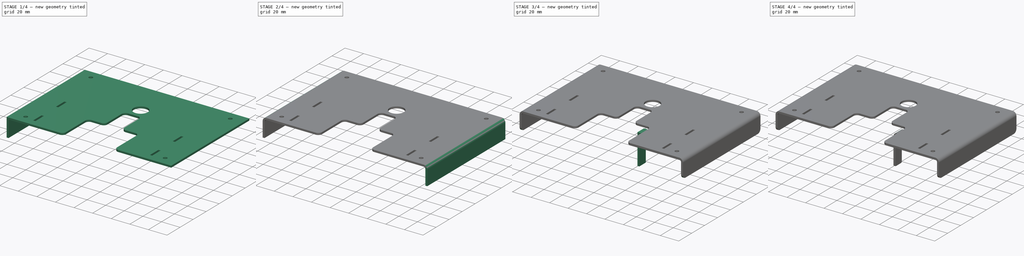
[diagram: build sequence overview — one tinted view per stage of 4, left to right]
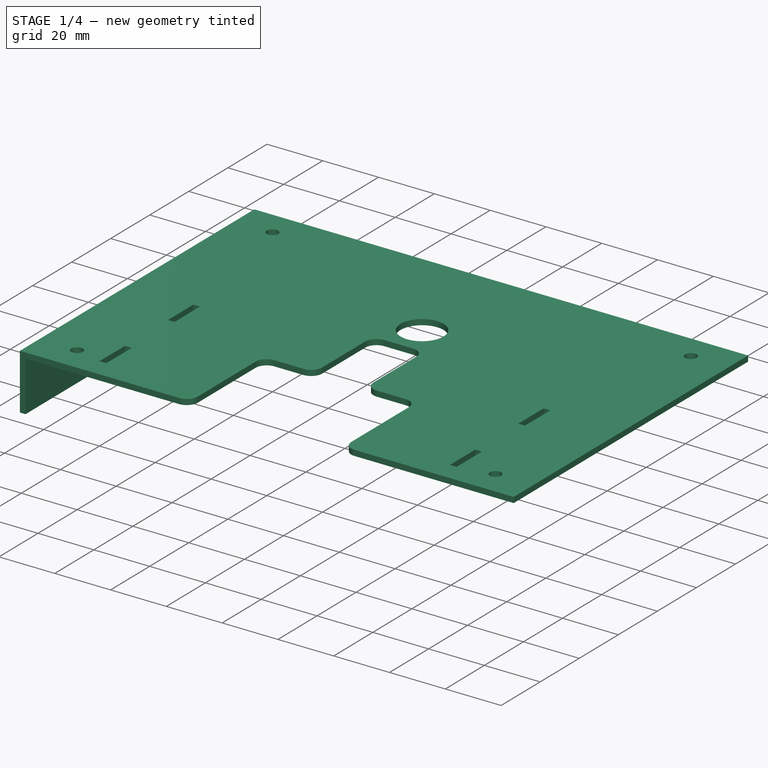
[diagram: stage 1 of 4 — iso view after this stage's code; geometry added in this stage tinted green]
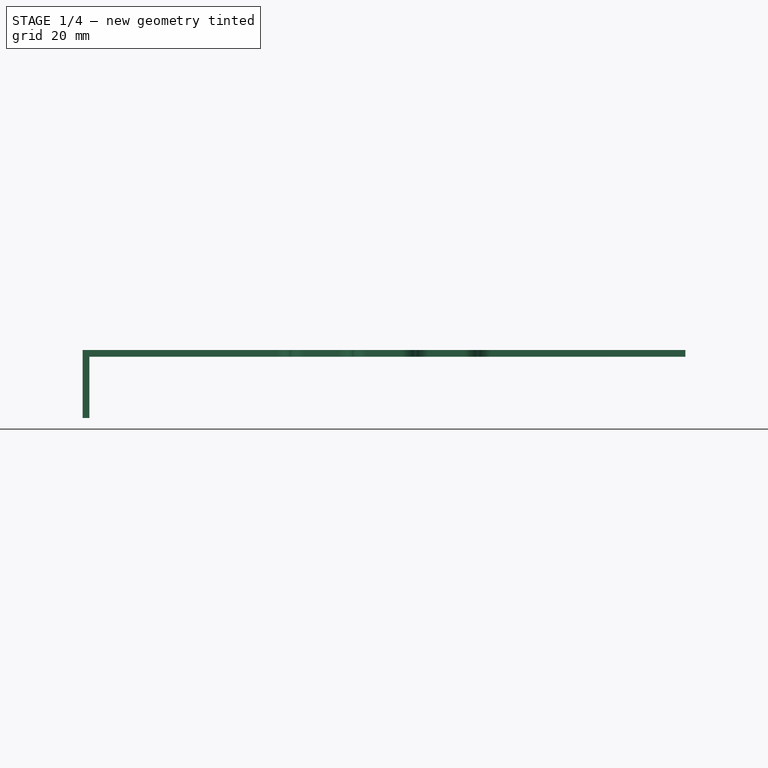
[diagram: stage 1 of 4 — front view after this stage's code; geometry added in this stage tinted green]
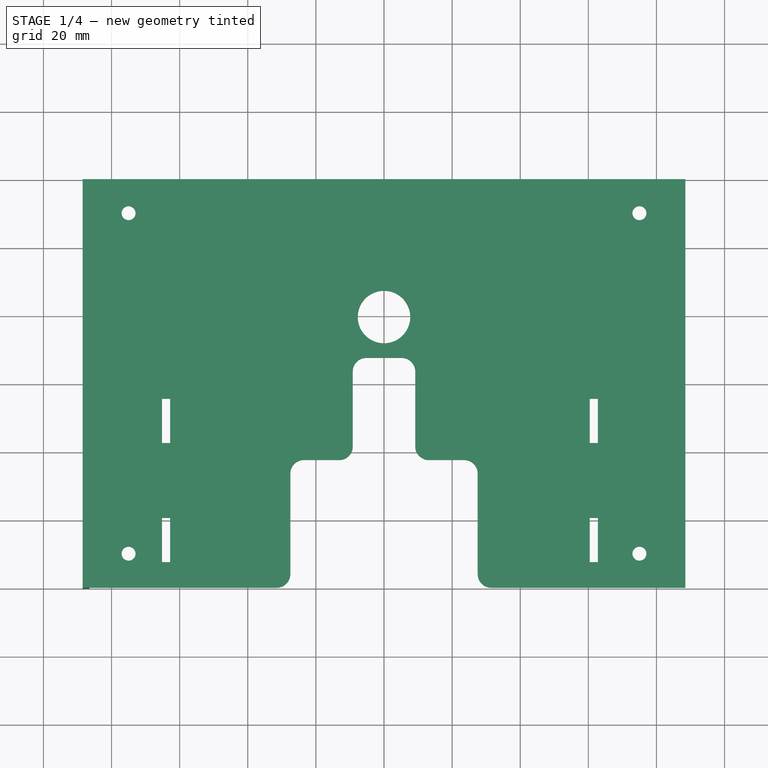
[diagram: stage 1 of 4 — top view after this stage's code; geometry added in this stage tinted green]
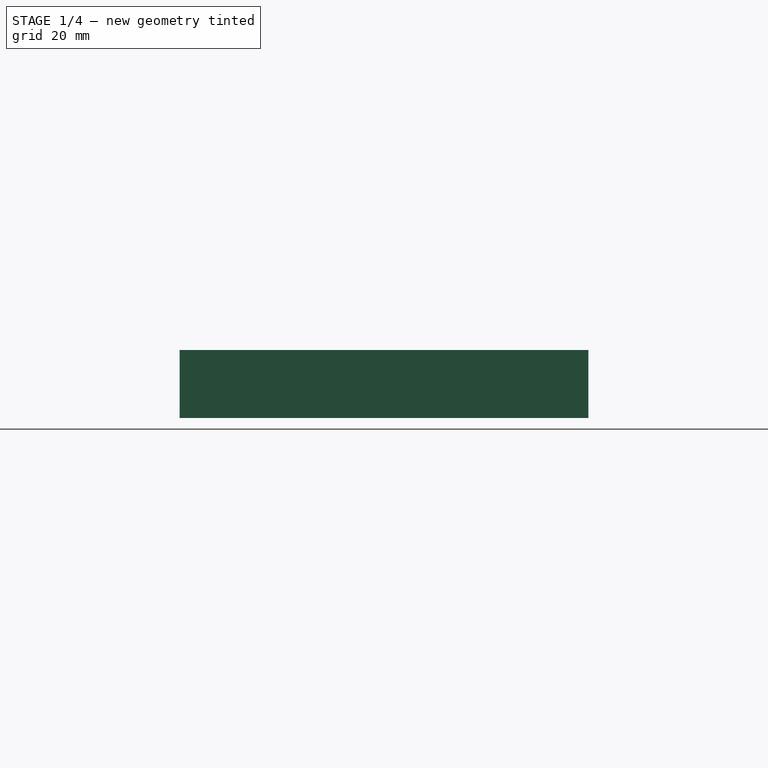
[diagram: stage 1 of 4 — right view after this stage's code; geometry added in this stage tinted green]
FCSTD DOCUMENT  (FreeCAD 0.14R3310 (Git))
Label: 47. PLACA Z (SOPORTE EN EJE Z)
License: CC-BY 3.0
LicenseURL: http://creativecommons.org/licenses/by/3.0/
objects: PartDesign::Fillet×7, Sketcher::SketchObject×5, PartDesign::Pad×5
note: 22 computed .brp shape members not serialized (recipe doc carries the construction recipe); baked Part::Feature solids carry a one-line shape summary decoded from their .brp

FEATURE [Sketcher::SketchObject] Sketch
  sketch-geometry (34):
    g0: LineSegment StartX=-88.5 StartY=60 StartZ=0 EndX=88.5 EndY=60 EndZ=0
    g1: LineSegment StartX=88.5 StartY=60 StartZ=0 EndX=88.5 EndY=-60 EndZ=0
    g2: LineSegment [constr] StartX=88.5 StartY=-60 StartZ=0 EndX=-88.5 EndY=-60 EndZ=0
    g3: LineSegment StartX=-88.5 StartY=-60 StartZ=0 EndX=-88.5 EndY=60 EndZ=0
    g4: Circle CenterX=-75 CenterY=-50 CenterZ=0 NormalX=0 NormalY=0 NormalZ=1 Radius=2.05
    g5: Circle CenterX=-75 CenterY=50 CenterZ=0 NormalX=0 NormalY=0 NormalZ=1 Radius=2.05
    g6: Circle CenterX=75 CenterY=50 CenterZ=0 NormalX=0 NormalY=0 NormalZ=1 Radius=2.05
    g7: Circle CenterX=75 CenterY=-50 CenterZ=0 NormalX=0 NormalY=0 NormalZ=1 Radius=2.05
    g8: LineSegment StartX=-65.2 StartY=-39.5 StartZ=0 EndX=-62.8 EndY=-39.5 EndZ=0
    g9: LineSegment StartX=-62.8 StartY=-39.5 StartZ=0 EndX=-62.8 EndY=-52.5 EndZ=0
    g10: LineSegment StartX=-62.8 StartY=-52.5 StartZ=0 EndX=-65.2 EndY=-52.5 EndZ=0
    g11: LineSegment StartX=-65.2 StartY=-52.5 StartZ=0 EndX=-65.2 EndY=-39.5 EndZ=0
    g12: LineSegment StartX=-65.2 StartY=-4.5 StartZ=0 EndX=-62.8 EndY=-4.5 EndZ=0
    g13: LineSegment StartX=-62.8 StartY=-4.5 StartZ=0 EndX=-62.8 EndY=-17.5 EndZ=0
    g14: LineSegment StartX=-62.8 StartY=-17.5 StartZ=0 EndX=-65.2 EndY=-17.5 EndZ=0
    g15: LineSegment StartX=-65.2 StartY=-17.5 StartZ=0 EndX=-65.2 EndY=-4.5 EndZ=0
    g16: LineSegment StartX=62.8 StartY=-4.5 StartZ=0 EndX=60.4 EndY=-4.5 EndZ=0
    g17: LineSegment StartX=60.4 StartY=-4.5 StartZ=0 EndX=60.4 EndY=-17.5 EndZ=0
    g18: LineSegment StartX=60.4 StartY=-17.5 StartZ=0 EndX=62.8 EndY=-17.5 EndZ=0
    g19: LineSegment StartX=62.8 StartY=-17.5 StartZ=0 EndX=62.8 EndY=-4.5 EndZ=0
    g20: LineSegment StartX=62.8 StartY=-39.5 StartZ=0 EndX=60.4 EndY=-39.5 EndZ=0
    g21: LineSegment StartX=60.4 StartY=-39.5 StartZ=0 EndX=60.4 EndY=-52.5 EndZ=0
    g22: LineSegment StartX=60.4 StartY=-52.5 StartZ=0 EndX=62.8 EndY=-52.5 EndZ=0
    g23: LineSegment StartX=62.8 StartY=-52.5 StartZ=0 EndX=62.8 EndY=-39.5 EndZ=0
    g24: LineSegment StartX=-88.5 StartY=-60 StartZ=0 EndX=-27.5 EndY=-60 EndZ=0
    g25: LineSegment StartX=-27.5 StartY=-60 StartZ=0 EndX=-27.5 EndY=-22.5 EndZ=0
    g26: LineSegment StartX=-27.5 StartY=-22.5 StartZ=0 EndX=-9.16 EndY=-22.5 EndZ=0
    g27: LineSegment StartX=-9.16 StartY=-22.5 StartZ=0 EndX=-9.16 EndY=7.5 EndZ=0
    g28: LineSegment StartX=-9.16 StartY=7.5 StartZ=0 EndX=9.17 EndY=7.5 EndZ=0
    g29: LineSegment StartX=9.17 StartY=7.5 StartZ=0 EndX=9.17 EndY=-22.5 EndZ=0
    g30: LineSegment StartX=9.17 StartY=-22.5 StartZ=0 EndX=27.51 EndY=-22.5 EndZ=0
    g31: LineSegment StartX=27.51 StartY=-22.5 StartZ=0 EndX=27.51 EndY=-60 EndZ=0
    g32: LineSegment StartX=27.51 StartY=-60 StartZ=0 EndX=88.5 EndY=-60 EndZ=0
    g33: Circle CenterX=0 CenterY=19.5 CenterZ=0 NormalX=0 NormalY=0 NormalZ=1 Radius=7.7
  constraints (95):
    c: Coincident(g0,g1)
    c: Coincident(g1,g2)
    c: Coincident(g2,g3)
    c: Coincident(g3,g0)
    c: Horizontal(g0)
    c: Horizontal(g2)
    c: Vertical(g1)
    c: Vertical(g3)
    c: Symmetric(g1,g0,g-1)
    c: Distance(g0) = 177
    c: Distance(g3) = 120
    c: Distance(g4,g2) = 10
    c: Distance(g4,g3) = 13.5
    c: Radius(g4) = 2.05
    c: Equal(g7,g4)
    c: Equal(g4,g5)
    c: Equal(g5,g6)
    c: Symmetric(g5,g6,g-2)
    c: Symmetric(g5,g4,g-1)
    c: Symmetric(g7,g4,g-2)
    c: Coincident(g8,g9)
    c: Coincident(g9,g10)
    c: Coincident(g10,g11)
    c: Coincident(g11,g8)
    c: Horizontal(g8)
    c: Horizontal(g10)
    c: Vertical(g9)
    c: Vertical(g11)
    c: Coincident(g12,g13)
    c: Coincident(g13,g14)
    c: Coincident(g14,g15)
    c: Coincident(g15,g12)
    c: Horizontal(g12)
    c: Horizontal(g14)
    c: Vertical(g13)
    c: Vertical(g15)
    c: Coincident(g16,g17)
    c: Coincident(g17,g18)
    c: Coincident(g18,g19)
    c: Coincident(g19,g16)
    c: Horizontal(g16)
    c: Horizontal(g18)
    c: Vertical(g17)
    c: Vertical(g19)
    c: Coincident(g20,g21)
    c: Coincident(g21,g22)
    c: Coincident(g22,g23)
    c: Coincident(g23,g20)
    c: Horizontal(g20)
    c: Horizontal(g22)
    c: Vertical(g21)
    c: Vertical(g23)
    c: Symmetric(g8,g20,g-2)
    c: Symmetric(g16,g12,g-2)
    c: Distance(g9) = 13
    c: Distance(g8) = 2.4
    c: Equal(g20,g18)
    c: Equal(g18,g14)
    c: Equal(g14,g10)
    c: Equal(g13,g9)
    c: Equal(g9,g19)
    c: Equal(g19,g23)
    c: Distance(g9,g2) = 7.5
    c: Distance(g8,g13) = 22
    c: Distance(g10,g3) = 23.3
    c: Distance(g14,g3) = 23.3
    c: Coincident(g24,g2)
    c: PointOnObject(g24,g2)
    c: Distance(g24,g2) = 61
    c: Coincident(g25,g24)
    c: Vertical(g25)
    c: Distance(g25) = 37.5
    c: Coincident(g26,g25)
    c: Horizontal(g26)
    c: Distance(g26) = 18.34
    c: Coincident(g27,g26)
    c: Vertical(g27)
    c: Distance(g27) = 30
    c: Coincident(g28,g27)
    c: Horizontal(g28)
    c: Distance(g28) = 18.33
    c: Coincident(g29,g28)
    c: Vertical(g29)
    c: Equal(g27,g29)
    c: Coincident(g30,g29)
    c: Horizontal(g30)
    c: Equal(g30,g26)
    c: Coincident(g31,g30)
    c: PointOnObject(g31,g2)
    c: Vertical(g31)
    c: Coincident(g32,g31)
    c: Coincident(g32,g1)
    c: PointOnObject(g33,g-2)
    c: Distance(g33,g28) = 12
    c: Radius(g33) = 7.7
FEATURE [PartDesign::Pad] Pad
  Length = 2
  Length2 = 100
  Sketch = -> Sketch
  Type = 0
FEATURE [PartDesign::Fillet] Fillet
  Base = -> Pad [Edge14,Edge17,Edge20,Edge23,Edge29,Edge2,Edge32,Edge26]
  Radius = 4
FEATURE [Sketcher::SketchObject] Sketch001
  ExternalGeometry = -> [Fillet]
  Placement = pos=(-88.5,0,0) rot=(0.57735,-0.57735,-0.57735;2.0944rad)
  Support = -> Fillet [Face4]
  sketch-geometry (4):
    g0: LineSegment StartX=-60 StartY=2 StartZ=0 EndX=60 EndY=2 EndZ=0
    g1: LineSegment StartX=60 StartY=2 StartZ=0 EndX=60 EndY=-18 EndZ=0
    g2: LineSegment StartX=60 StartY=-18 StartZ=0 EndX=-60 EndY=-18 EndZ=0
    g3: LineSegment StartX=-60 StartY=-18 StartZ=0 EndX=-60 EndY=2 EndZ=0
  constraints (11):
    c: Coincident(g0,g1)
    c: Coincident(g1,g2)
    c: Coincident(g2,g3)
    c: Coincident(g3,g0)
    c: Horizontal(g0)
    c: Horizontal(g2)
    c: Vertical(g1)
    c: Vertical(g3)
    c: Coincident(g0,g-4)
    c: Coincident(g0,g-3)
    c: Distance(g1) = 20
FEATURE [PartDesign::Pad] Pad001
  Length = 2
  Length2 = 100
  Reversed = true
  Sketch = -> Sketch001
  Type = 0
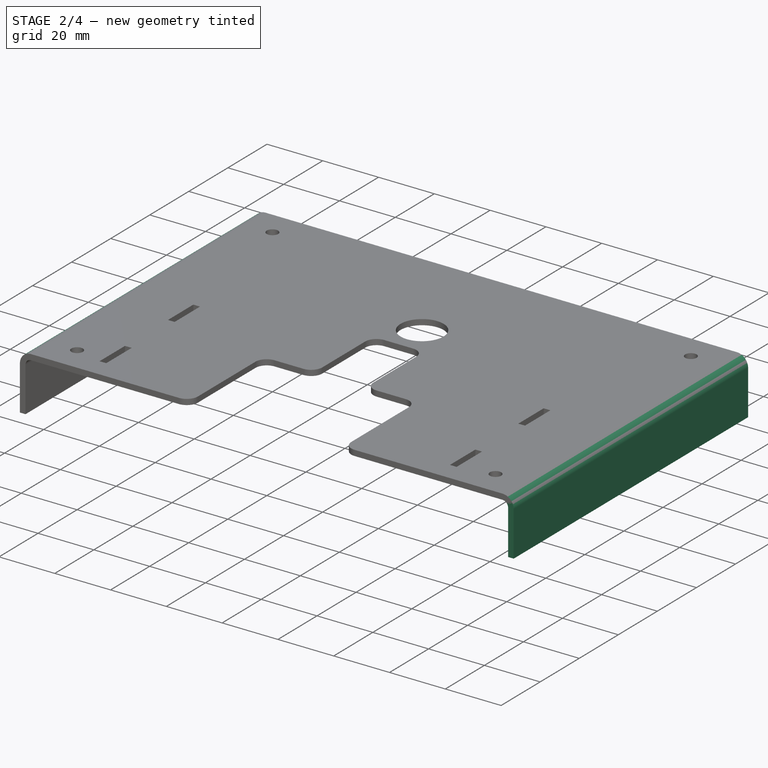
[diagram: stage 2 of 4 — iso view after this stage's code; geometry added in this stage tinted green]
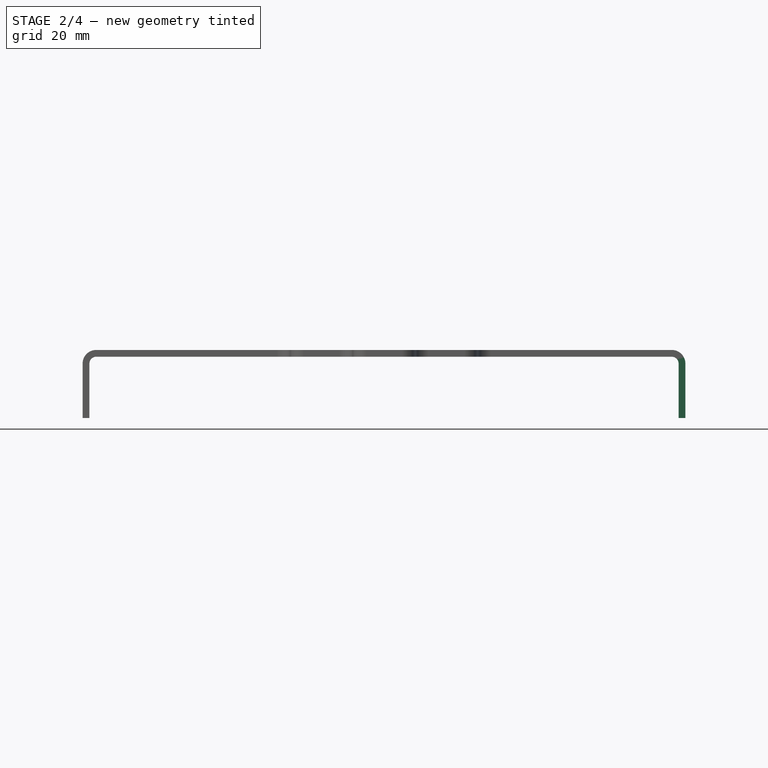
[diagram: stage 2 of 4 — front view after this stage's code; geometry added in this stage tinted green]
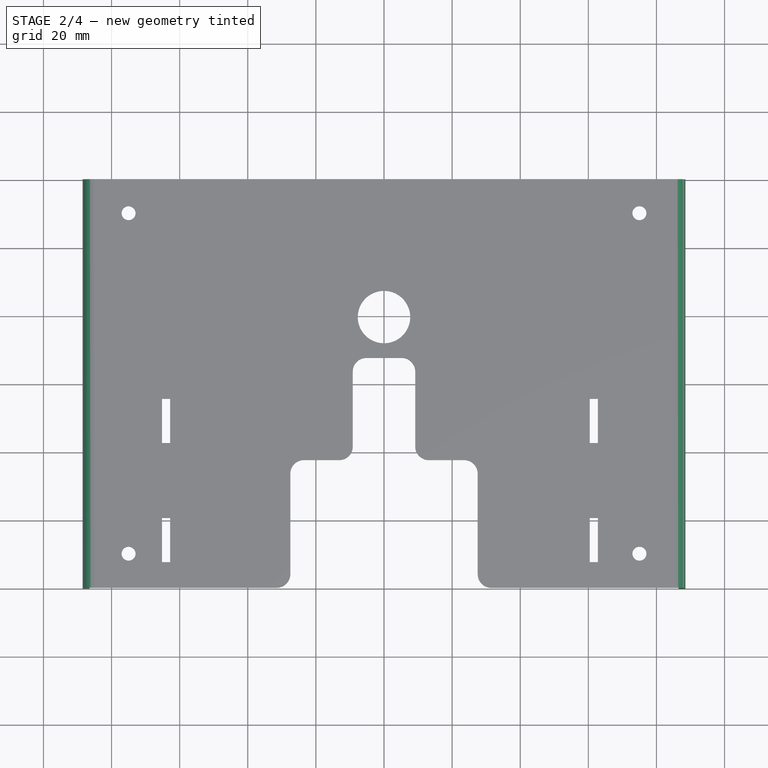
[diagram: stage 2 of 4 — top view after this stage's code; geometry added in this stage tinted green]
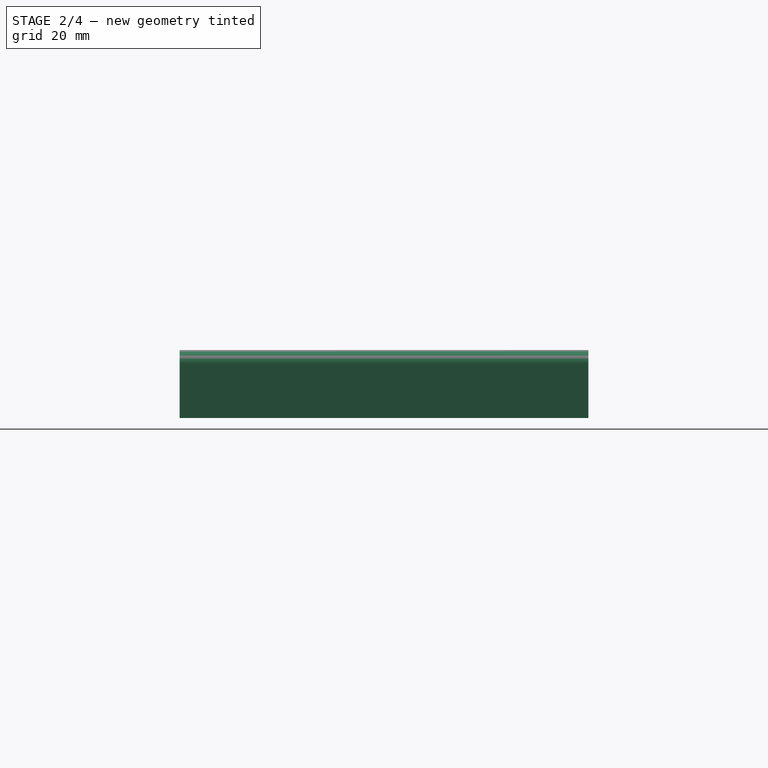
[diagram: stage 2 of 4 — right view after this stage's code; geometry added in this stage tinted green]
FEATURE [Sketcher::SketchObject] Sketch002
  ExternalGeometry = -> [Pad001]
  Placement = pos=(88.5,0,0) rot=(0.57735,0.57735,0.57735;2.0944rad)
  Support = -> Pad001 [Face20]
  sketch-geometry (4):
    g0: LineSegment StartX=-60 StartY=2 StartZ=0 EndX=60 EndY=2 EndZ=0
    g1: LineSegment StartX=60 StartY=2 StartZ=0 EndX=60 EndY=-18 EndZ=0
    g2: LineSegment StartX=60 StartY=-18 StartZ=0 EndX=-60 EndY=-18 EndZ=0
    g3: LineSegment StartX=-60 StartY=-18 StartZ=0 EndX=-60 EndY=2 EndZ=0
  constraints (11):
    c: Coincident(g0,g1)
    c: Coincident(g1,g2)
    c: Coincident(g2,g3)
    c: Coincident(g3,g0)
    c: Horizontal(g0)
    c: Horizontal(g2)
    c: Vertical(g1)
    c: Vertical(g3)
    c: Coincident(g0,g-4)
    c: Coincident(g0,g-3)
    c: Distance(g1) = 20
FEATURE [PartDesign::Pad] Pad002
  Length = 2
  Length2 = 100
  Reversed = true
  Sketch = -> Sketch002
  Type = 0
FEATURE [PartDesign::Fillet] Fillet001
  Base = -> Pad002 [Edge135,Edge10]
  Radius = 4
FEATURE [PartDesign::Fillet] Fillet002
  Base = -> Fillet001 [Edge71,Edge69]
  Radius = 2
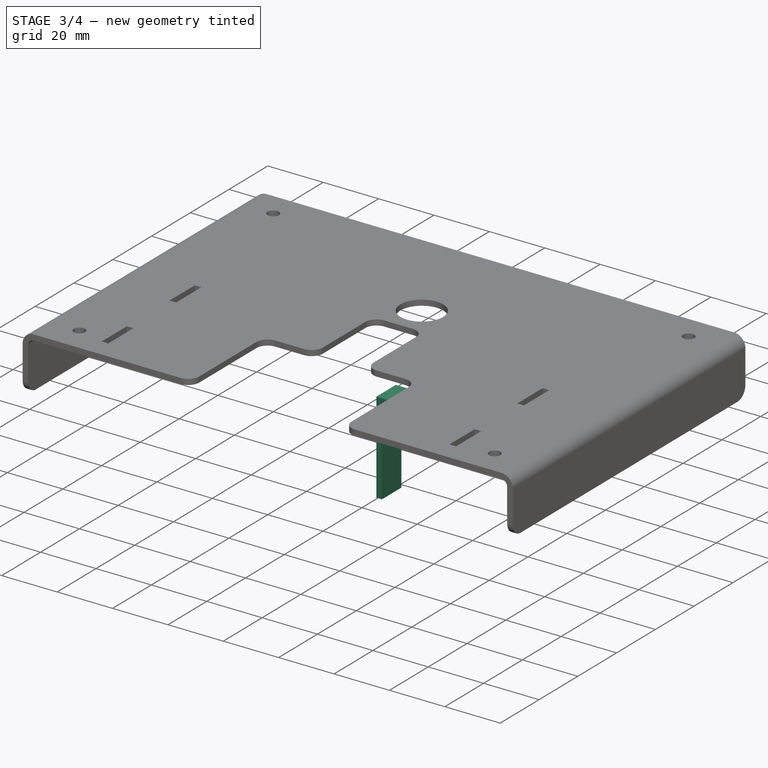
[diagram: stage 3 of 4 — iso view after this stage's code; geometry added in this stage tinted green]
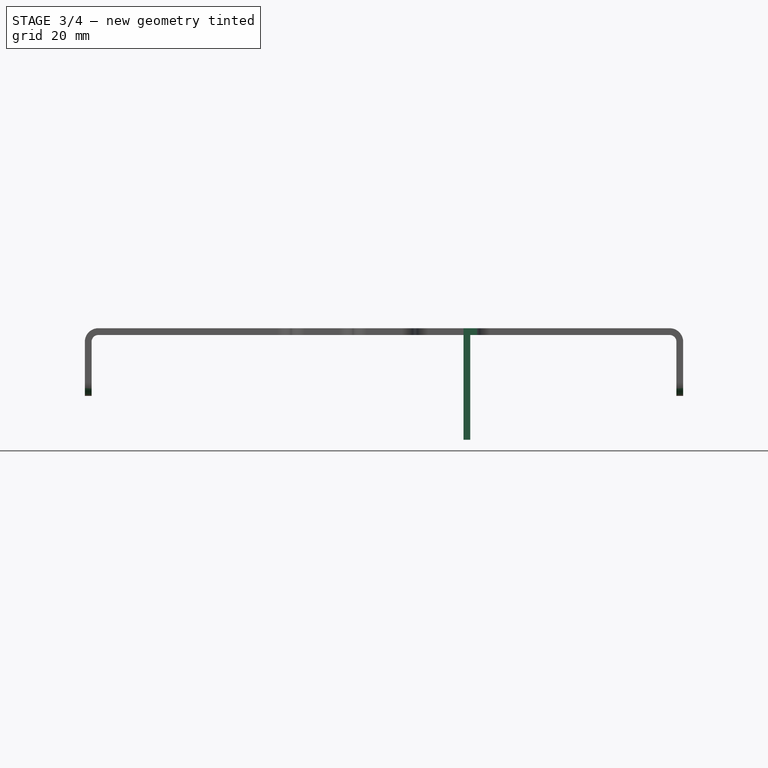
[diagram: stage 3 of 4 — front view after this stage's code; geometry added in this stage tinted green]
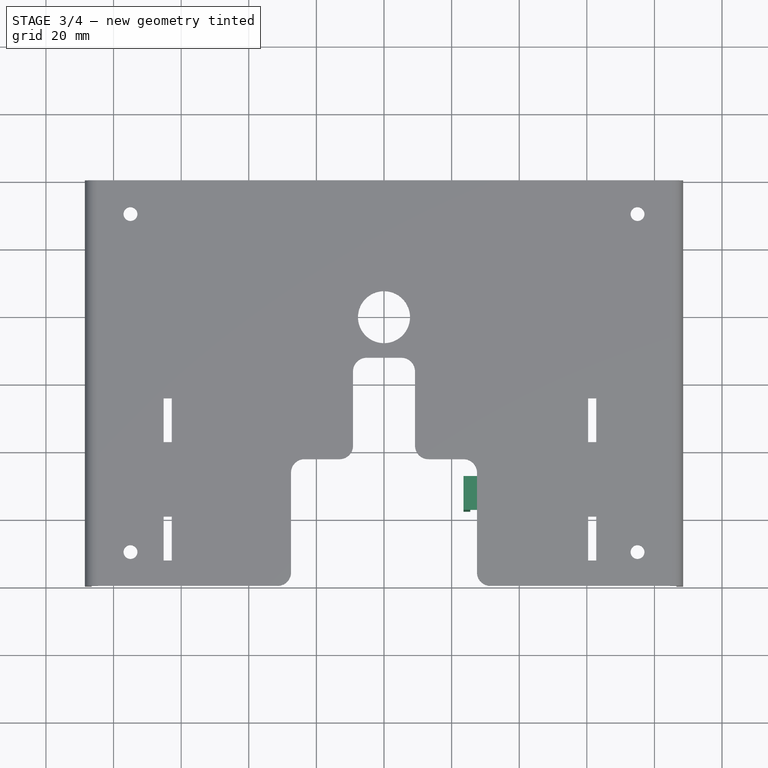
[diagram: stage 3 of 4 — top view after this stage's code; geometry added in this stage tinted green]
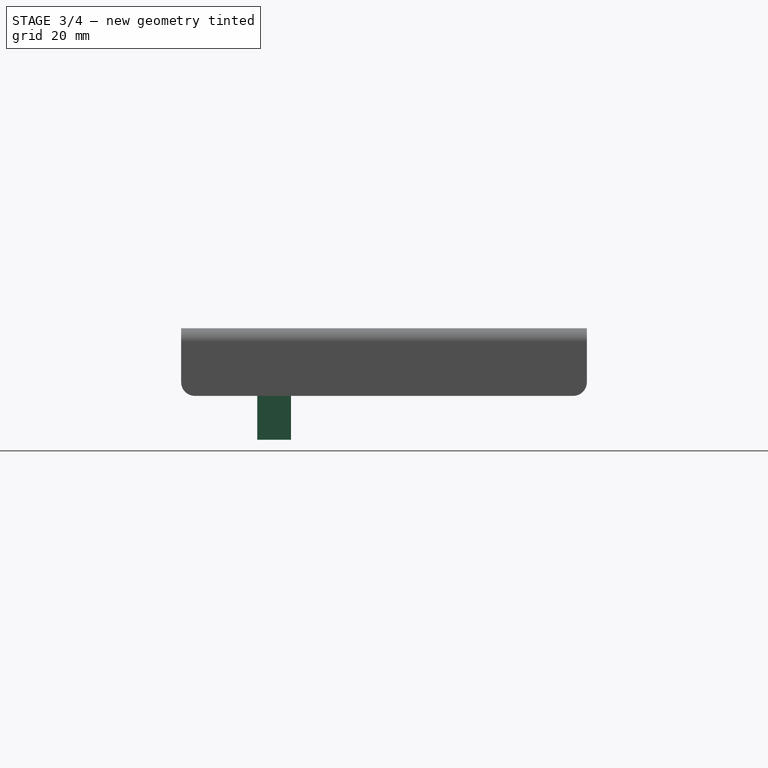
[diagram: stage 3 of 4 — right view after this stage's code; geometry added in this stage tinted green]
FEATURE [PartDesign::Fillet] Fillet003
  Base = -> Fillet002 [Edge109,Edge101,Edge6,Edge94]
  Radius = 4
FEATURE [Sketcher::SketchObject] Sketch003
  ExternalGeometry = -> [Fillet003]
  Placement = pos=(27.51,0,0) rot=(0.57735,-0.57735,-0.57735;2.0944rad)
  Support = -> Fillet003 [Face20]
  sketch-geometry (4):
    g0: LineSegment StartX=27.5 StartY=2 StartZ=0 EndX=37.5 EndY=2 EndZ=0
    g1: LineSegment StartX=37.5 StartY=2 StartZ=0 EndX=37.5 EndY=0 EndZ=0
    g2: LineSegment StartX=37.5 StartY=0 StartZ=0 EndX=27.5 EndY=0 EndZ=0
    g3: LineSegment StartX=27.5 StartY=0 StartZ=0 EndX=27.5 EndY=2 EndZ=0
  constraints (12):
    c: Coincident(g0,g1)
    c: Coincident(g1,g2)
    c: Coincident(g2,g3)
    c: Coincident(g3,g0)
    c: Horizontal(g0)
    c: Horizontal(g2)
    c: Vertical(g1)
    c: Vertical(g3)
    c: PointOnObject(g0,g-3)
    c: DistanceX(g-2,g0) = 27.5
    c: Distance(g2) = 10
    c: Distance(g1) = 2
FEATURE [PartDesign::Pad] Pad003
  Length = 4
  Length2 = 100
  Sketch = -> Sketch003
  Type = 0
FEATURE [Sketcher::SketchObject] Sketch004
  ExternalGeometry = -> [Pad003]
  Placement = pos=(23.51,0,0) rot=(0.57735,-0.57735,-0.57735;2.0944rad)
  Support = -> Pad003 [Face11]
  sketch-geometry (4):
    g0: LineSegment StartX=27.5 StartY=2 StartZ=0 EndX=37.5 EndY=2 EndZ=0
    g1: LineSegment StartX=37.5 StartY=2 StartZ=0 EndX=37.5 EndY=-31 EndZ=0
    g2: LineSegment StartX=37.5 StartY=-31 StartZ=0 EndX=27.5 EndY=-31 EndZ=0
    g3: LineSegment StartX=27.5 StartY=-31 StartZ=0 EndX=27.5 EndY=2 EndZ=0
  constraints (11):
    c: Coincident(g0,g1)
    c: Coincident(g1,g2)
    c: Coincident(g2,g3)
    c: Coincident(g3,g0)
    c: Horizontal(g0)
    c: Horizontal(g2)
    c: Vertical(g1)
    c: Vertical(g3)
    c: Coincident(g0,g-3)
    c: Coincident(g0,g-3)
    c: Distance(g1) = 33
FEATURE [PartDesign::Pad] Pad004
  Length = 2
  Length2 = 100
  Reversed = true
  Sketch = -> Sketch004
  Type = 0
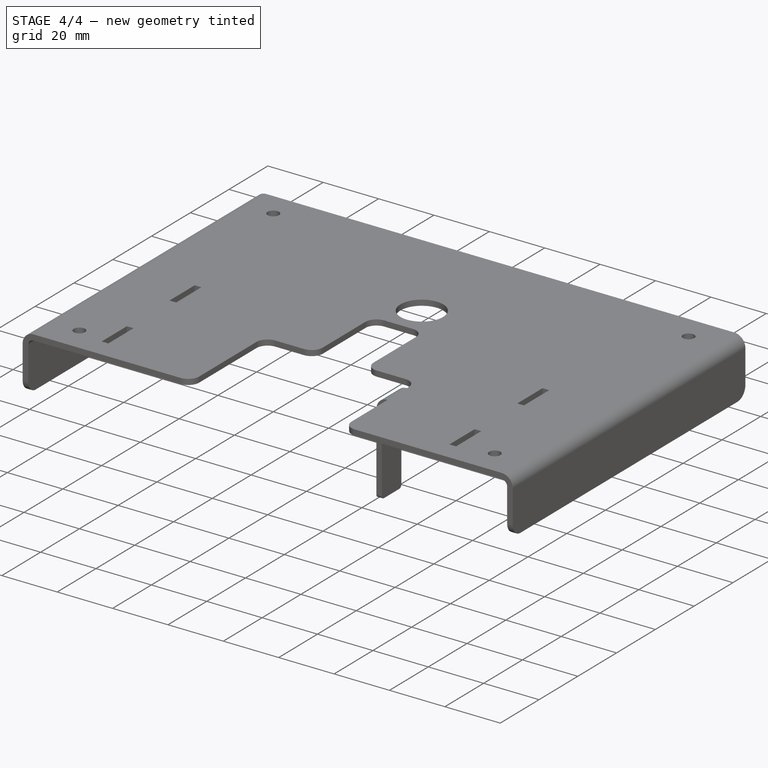
[diagram: stage 4 of 4 — iso view after this stage's code; geometry added in this stage tinted green]
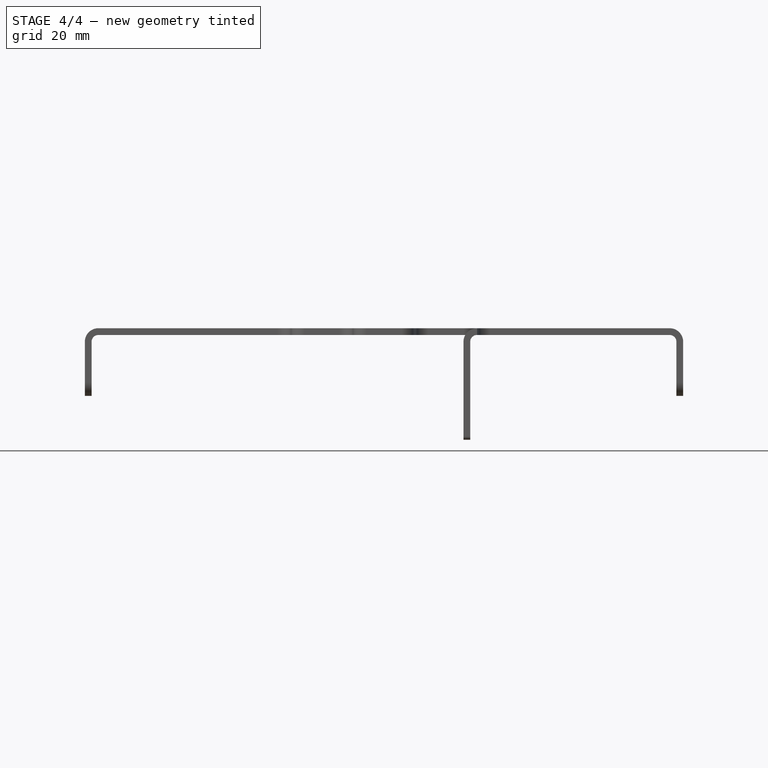
[diagram: stage 4 of 4 — front view after this stage's code; geometry added in this stage tinted green]
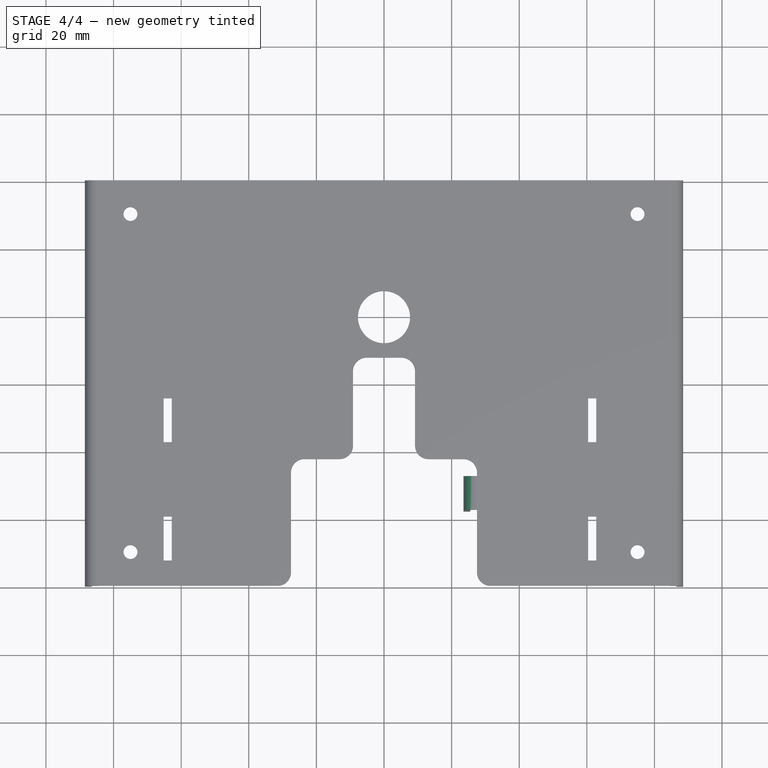
[diagram: stage 4 of 4 — top view after this stage's code; geometry added in this stage tinted green]
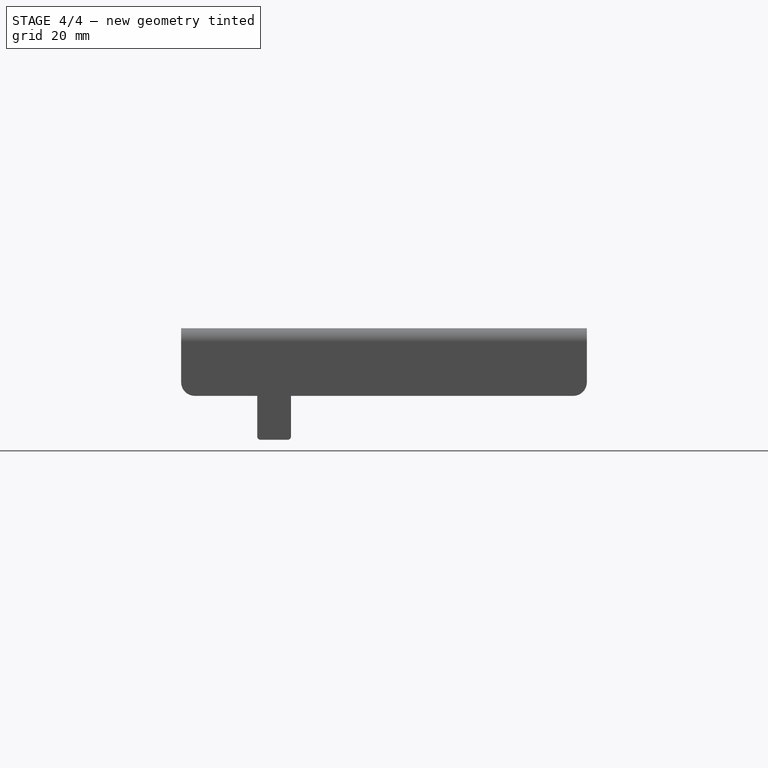
[diagram: stage 4 of 4 — right view after this stage's code; geometry added in this stage tinted green]
FEATURE [PartDesign::Fillet] Fillet004
  Base = -> Pad004 [Edge174]
  Radius = 4
FEATURE [PartDesign::Fillet] Fillet005
  Base = -> Fillet004 [Edge157]
  Radius = 2
FEATURE [PartDesign::Fillet] Fillet006
  Base = -> Fillet005 [Edge12,Edge3]
  Radius = 1
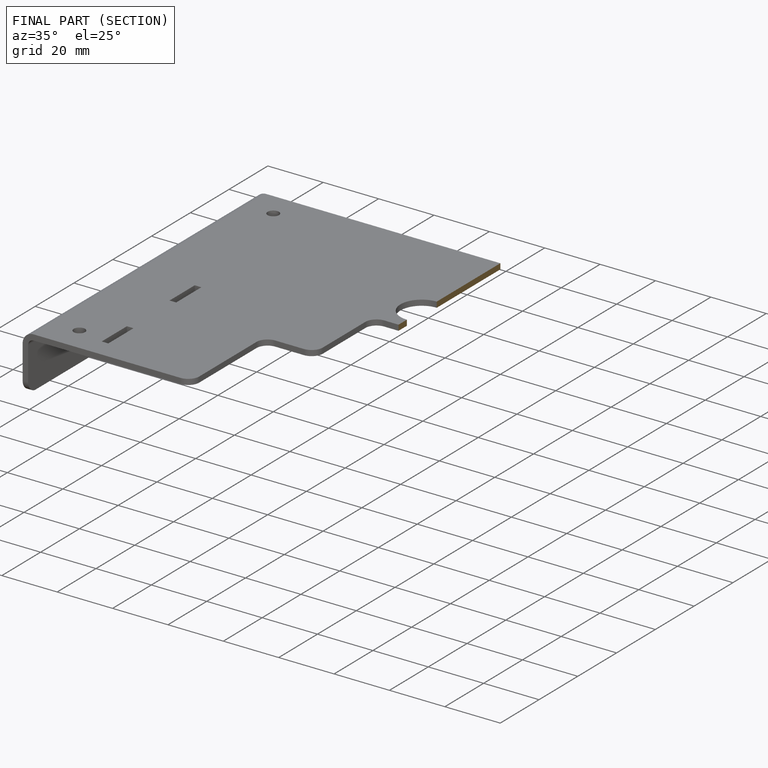
[diagram: finished part — half-section view (interior)]
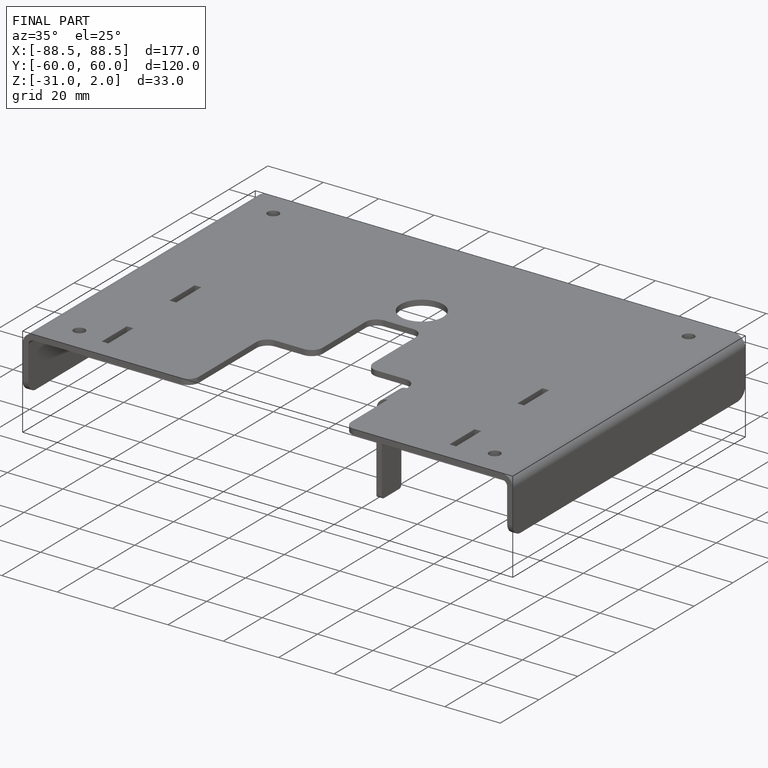
[diagram: finished part — iso view with bounding-box wireframe]
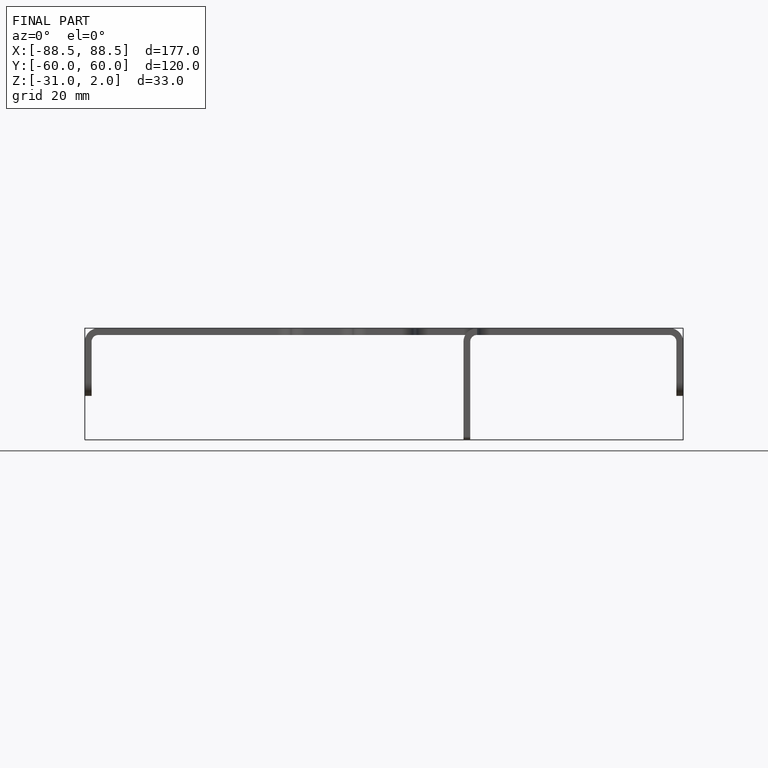
[diagram: finished part — front view with bounding-box wireframe]
